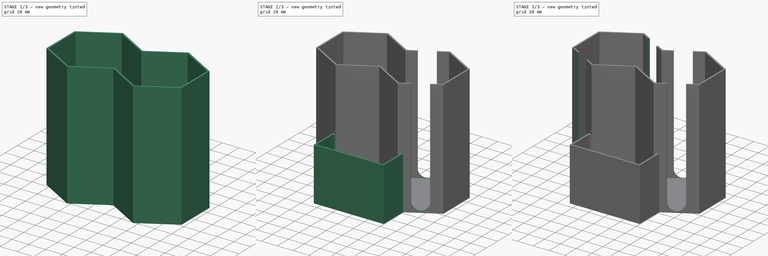
[diagram: build sequence overview — one tinted view per stage of 3, left to right]
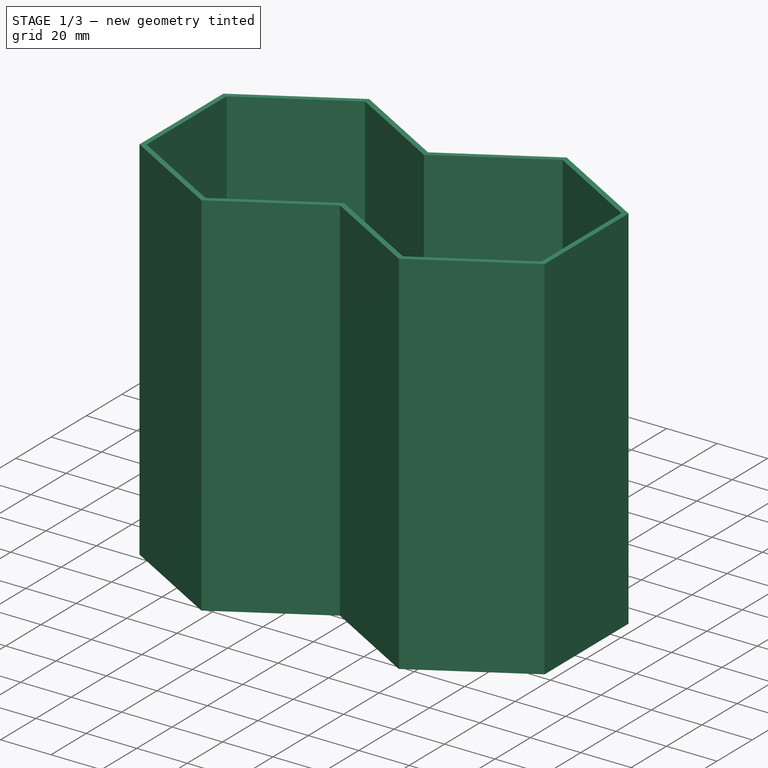
[diagram: stage 1 of 3 — iso view after this stage's code; geometry added in this stage tinted green]
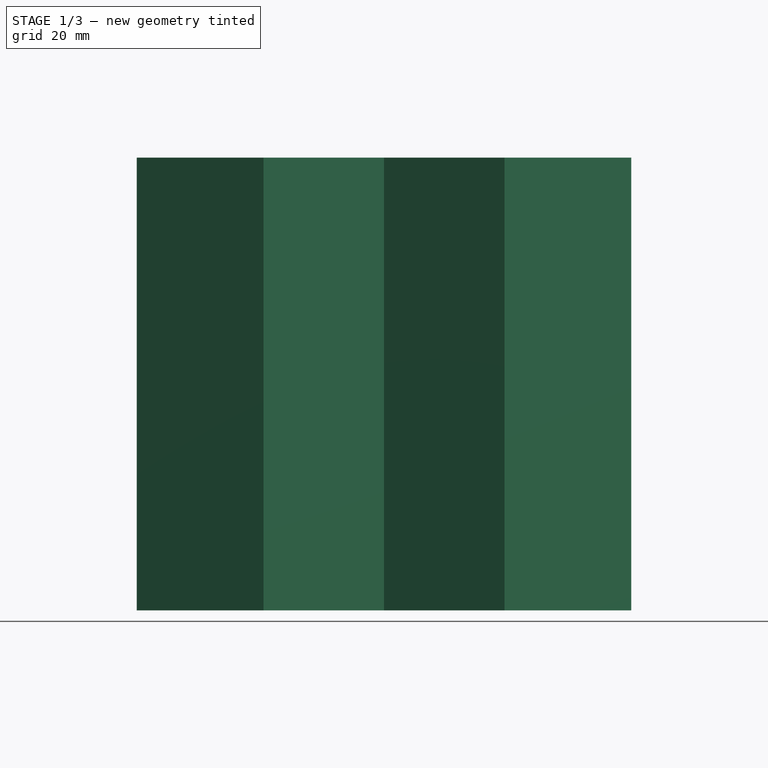
[diagram: stage 1 of 3 — front view after this stage's code; geometry added in this stage tinted green]
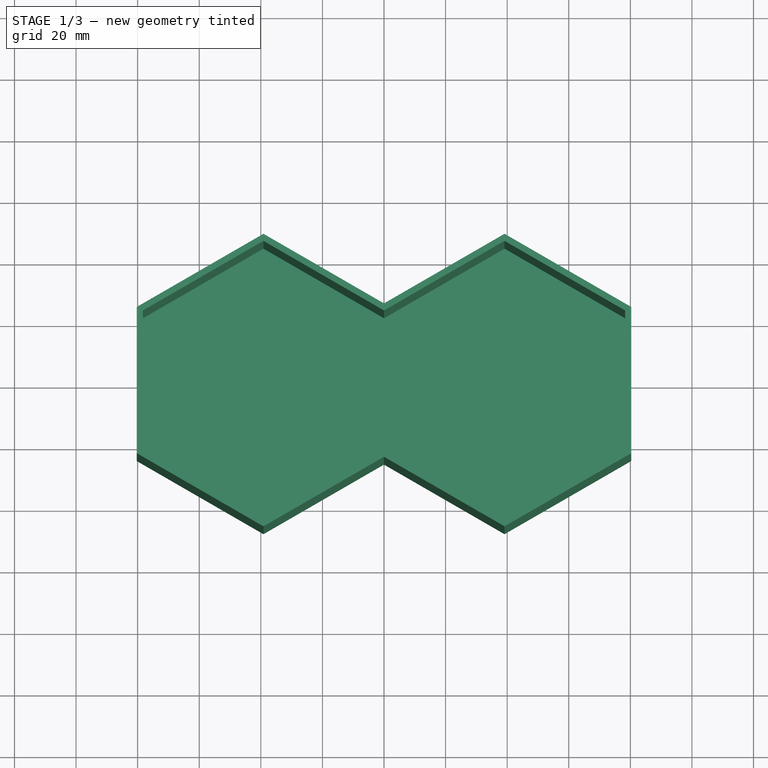
[diagram: stage 1 of 3 — top view after this stage's code; geometry added in this stage tinted green]
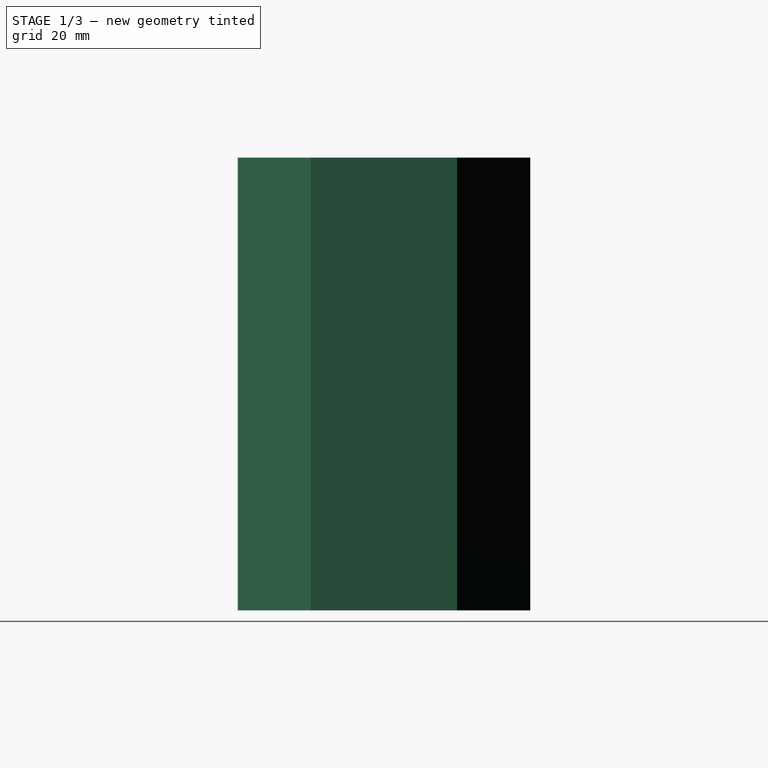
[diagram: stage 1 of 3 — right view after this stage's code; geometry added in this stage tinted green]
FCSTD DOCUMENT  (FreeCAD 1.0R39285 (Git))
Label: catan case 2
License: All rights reserved
objects: Sketcher::SketchObject×6, PartDesign::Pad×3, PartDesign::Pocket×3, PartDesign::Thickness×1, PartDesign::Body×1
note: 34 computed .brp shape members not serialized (recipe doc carries the construction recipe); baked Part::Feature solids carry a one-line shape summary decoded from their .brp

FEATURE [Sketcher::SketchObject] Sketch
  ArcFitTolerance = 1e-06
  AttachmentSupport = -> [XY_Plane]
  FullyConstrained = true
  MakeInternals = false
  MapMode = 5
  sketch-geometry (14):
    g0: LineSegment StartX=-1e-16 StartY=22.6 StartZ=0 EndX=-39.1443 EndY=45.2 EndZ=0
    g1: LineSegment StartX=-39.1443 StartY=45.2 StartZ=0 EndX=-78.2887 EndY=22.6 EndZ=0
    g2: LineSegment StartX=-78.2887 StartY=22.6 StartZ=0 EndX=-78.2887 EndY=-22.6 EndZ=0
    g3: LineSegment StartX=-78.2887 StartY=-22.6 StartZ=0 EndX=-39.1443 EndY=-45.2 EndZ=0
    g4: LineSegment StartX=-39.1443 StartY=-45.2 StartZ=0 EndX=-9e-16 EndY=-22.6 EndZ=0
    g5: LineSegment [constr] StartX=-1e-15 StartY=-22.6 StartZ=0 EndX=-1e-16 EndY=22.6 EndZ=0
    g6: Circle [constr] CenterX=-39.1443 CenterY=0 CenterZ=0 NormalX=0 NormalY=0 NormalZ=1 AngleXU=0 Radius=45.2
    g7: LineSegment StartX=78.2887 StartY=22.6 StartZ=0 EndX=39.1443 EndY=45.2 EndZ=0
    g8: LineSegment StartX=39.1443 StartY=45.2 StartZ=0 EndX=-1e-16 EndY=22.6 EndZ=0
    g9: LineSegment [constr] StartX=-1e-16 StartY=22.6 StartZ=0 EndX=-1e-15 EndY=-22.6 EndZ=0
    g10: LineSegment StartX=-1e-15 StartY=-22.6 StartZ=0 EndX=39.1443 EndY=-45.2 EndZ=0
    g11: LineSegment StartX=39.1443 StartY=-45.2 StartZ=0 EndX=78.2887 EndY=-22.6 EndZ=0
    g12: LineSegment StartX=78.2887 StartY=-22.6 StartZ=0 EndX=78.2887 EndY=22.6 EndZ=0
    g13: Circle [constr] CenterX=39.1443 CenterY=0 CenterZ=0 NormalX=0 NormalY=0 NormalZ=1 AngleXU=0 Radius=45.2
  constraints (31):
    c: Coincident(g0,g1)
    c: Coincident(g1,g2)
    c: Coincident(g2,g3)
    c: Coincident(g3,g4)
    c: Coincident(g4,g5)
    c: Coincident(g5,g0)
    c: Equal(g0, g1-g5) x5
    c: PointOnObject(g0,g6)
    c: PointOnObject(g1,g6)
    c: PointOnObject(g2,g6)
    c: PointOnObject(g3,g6)
    c: PointOnObject(g4,g6)
    c: PointOnObject(g5,g6)
    c: PointOnObject(g6,g-1)
    c: Coincident(g7,g8)
    c: Coincident(g8,g9)
    c: Coincident(g9,g10)
    c: Coincident(g10,g11)
    c: Coincident(g11,g12)
    c: Coincident(g12,g7)
    c: Equal(g7, g8-g12) x5
    c: PointOnObject(g7,g13)
    c: PointOnObject(g8,g13)
    c: PointOnObject(g9,g13)
    c: PointOnObject(g10,g13)
    c: PointOnObject(g11,g13)
    c: PointOnObject(g12,g13)
    c: Radius(g13) = 45.2
    c: Symmetric(g6,g13,g-2)
    c: Coincident(g0,g8)
    c: Coincident(g4,g9)
FEATURE [PartDesign::Pad] Pad
  Direction = (0,0,1)
  Length = 145
  Length2 = 10
  Profile = -> Sketch
  ReferenceAxis = -> Sketch [N_Axis]
  Refine = true
  Suppressed = false
  Type = 0
FEATURE [PartDesign::Thickness] Thickness
  Base = -> Pad [Face12]
  BaseFeature = -> Pad
  Intersection = false
  Join = 1
  Mode = 0
  Refine = true
  SupportTransform = false
  Suppressed = false
  Value = 2
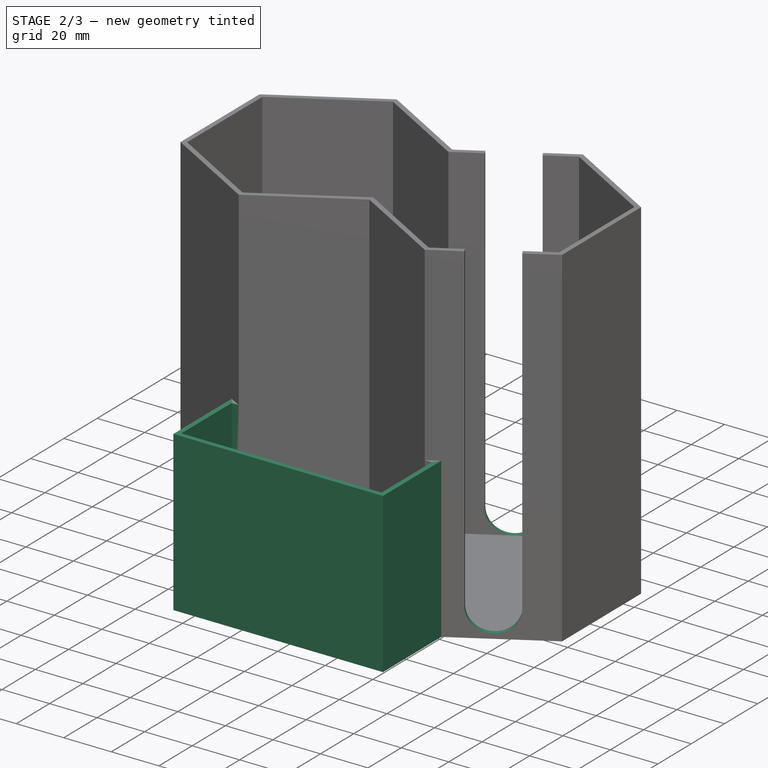
[diagram: stage 2 of 3 — iso view after this stage's code; geometry added in this stage tinted green]
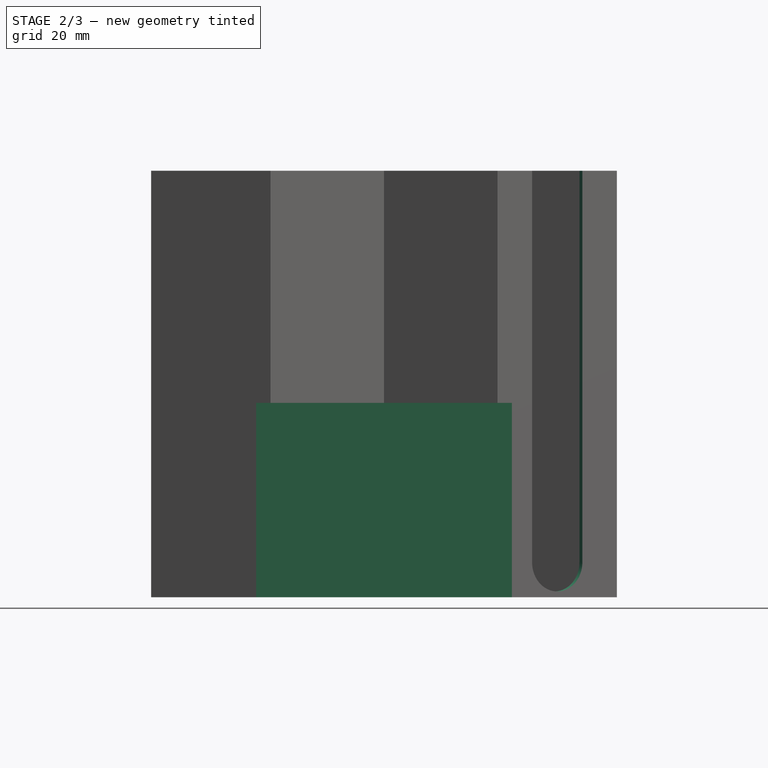
[diagram: stage 2 of 3 — front view after this stage's code; geometry added in this stage tinted green]
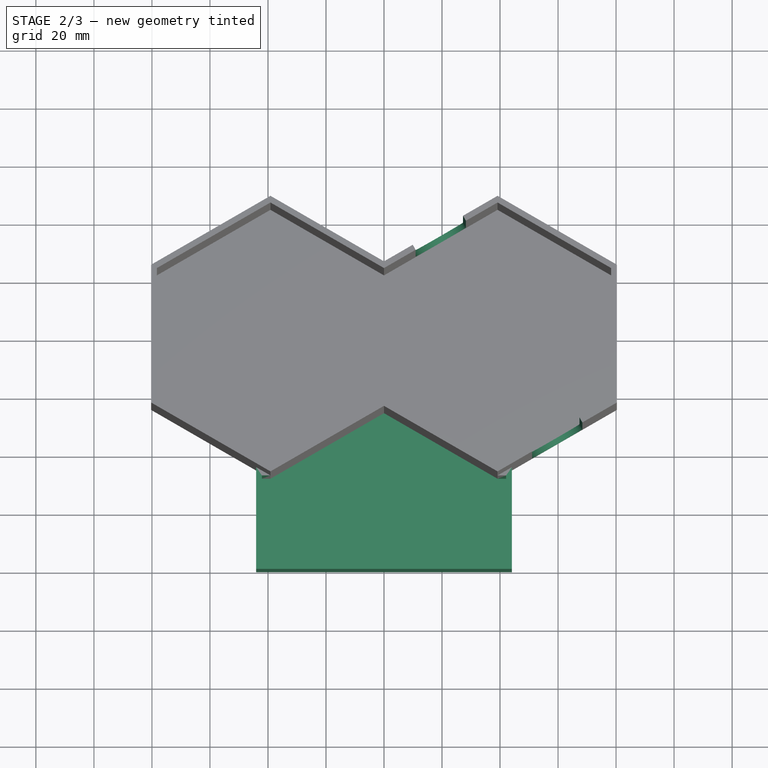
[diagram: stage 2 of 3 — top view after this stage's code; geometry added in this stage tinted green]
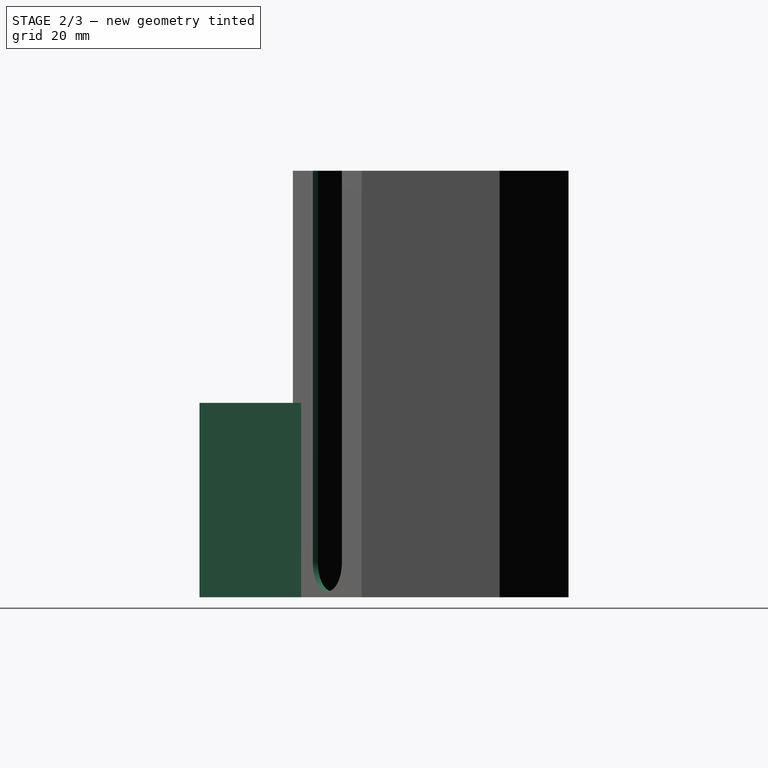
[diagram: stage 2 of 3 — right view after this stage's code; geometry added in this stage tinted green]
FEATURE [Sketcher::SketchObject] Sketch001
  ArcFitTolerance = 1e-06
  AttachmentSupport = -> [XY_Plane]
  ExternalGeometry = -> [Thickness]
  FullyConstrained = true
  MakeInternals = false
  MapMode = 5
  sketch-geometry (12):
    g0: LineSegment StartX=-44.1 StartY=-44.6483 StartZ=0 EndX=-39.1443 EndY=-47.5094 EndZ=0
    g1: LineSegment StartX=-39.1443 StartY=-47.5094 StartZ=0 EndX=-42.1 EndY=-47.5094 EndZ=0
    g2: LineSegment StartX=-42.1 StartY=-47.5094 StartZ=0 EndX=-42.1 EndY=-77.7094 EndZ=0
    g3: LineSegment StartX=-42.1 StartY=-77.7094 StartZ=0 EndX=42.1 EndY=-77.7094 EndZ=0
    g4: LineSegment StartX=42.1 StartY=-77.7094 StartZ=0 EndX=42.1 EndY=-47.5094 EndZ=0
    g5: LineSegment StartX=42.1 StartY=-47.5094 StartZ=0 EndX=39.1443 EndY=-47.5094 EndZ=0
    g6: LineSegment StartX=39.1443 StartY=-47.5094 StartZ=0 EndX=44.1 EndY=-44.6483 EndZ=0
    g7: LineSegment StartX=44.1 StartY=-44.6483 StartZ=0 EndX=44.1 EndY=-44.6483 EndZ=0
    g8: LineSegment StartX=44.1 StartY=-44.6483 StartZ=0 EndX=44.1 EndY=-79.7094 EndZ=0
    g9: LineSegment StartX=44.1 StartY=-79.7094 StartZ=0 EndX=-44.1 EndY=-79.7094 EndZ=0
    g10: LineSegment StartX=-44.1 StartY=-79.7094 StartZ=0 EndX=-44.1 EndY=-44.6483 EndZ=0
    g11: LineSegment StartX=-44.1 StartY=-44.6483 StartZ=0 EndX=-44.1 EndY=-44.6483 EndZ=0
  constraints (35):
    c: Coincident(g0,g1)
    c: Horizontal(g1)
    c: Coincident(g1,g2)
    c: Vertical(g2)
    c: Coincident(g2,g3)
    c: Coincident(g3,g4)
    c: Vertical(g4)
    c: Coincident(g4,g5)
    c: Horizontal(g5)
    c: Coincident(g5,g6)
    c: Coincident(g6,g7)
    c: Horizontal(g7)
    c: Coincident(g7,g8)
    c: Vertical(g8)
    c: Coincident(g8,g9)
    c: Horizontal(g9)
    c: Coincident(g9,g10)
    c: Vertical(g10)
    c: Coincident(g10,g11)
    c: Coincident(g11,g0)
    c: Horizontal(g11)
    c: Equal(g4,g2)
    c: Equal(g8,g10)
    c: Distance(g3,g8) = 2
    c: Distance(g2,g10) = 2
    c: Distance(g2,g9) = 2
    c: Symmetric(g2,g3,g-2)
    c: Distance(g3) = 84.2
    c: Distance(g4) = 30.2
    c: PointOnObject(g0,g-3)
    c: PointOnObject(g0,g-3)
    c: PointOnObject(g6,g-4)
    c: PointOnObject(g5,g-4)
    c: PointOnObject(g-4,g5)
    c: PointOnObject(g7,g-4)
FEATURE [PartDesign::Pad] Pad001
  BaseFeature = -> Thickness
  Direction = (0,0,1)
  Length = 65
  Length2 = 10
  Profile = -> Sketch001
  ReferenceAxis = -> Sketch001 [N_Axis]
  Refine = true
  Suppressed = false
  Type = 0
FEATURE [Sketcher::SketchObject] Sketch002
  ArcFitTolerance = 1e-06
  AttachmentSupport = -> [Pad001]
  ExternalGeometry = -> [Pad001]
  FullyConstrained = true
  MakeInternals = false
  MapMode = 5
  Placement = pos=(0,0,0) rot=(1,0,0;3.14159rad)
  sketch-geometry (7):
    g0: LineSegment StartX=-44.1 StartY=79.7094 StartZ=0 EndX=44.1 EndY=79.7094 EndZ=0
    g1: LineSegment StartX=44.1 StartY=79.7094 StartZ=0 EndX=44.1 EndY=44.6483 EndZ=0
    g2: LineSegment StartX=44.1 StartY=44.6483 StartZ=0 EndX=39.1443 EndY=47.5094 EndZ=0
    g3: LineSegment StartX=39.1443 StartY=47.5094 StartZ=0 EndX=-7.2e-15 EndY=24.9094 EndZ=0
    g4: LineSegment StartX=-7.2e-15 StartY=24.9094 StartZ=0 EndX=-39.1443 EndY=47.5094 EndZ=0
    g5: LineSegment StartX=-39.1443 StartY=47.5094 StartZ=0 EndX=-44.1 EndY=44.6483 EndZ=0
    g6: LineSegment StartX=-44.1 StartY=44.6483 StartZ=0 EndX=-44.1 EndY=79.7094 EndZ=0
  constraints (14):
    c: Coincident(g-6,g0)
    c: Coincident(g0,g-4)
    c: Coincident(g0,g1)
    c: Coincident(g1,g-3)
    c: Coincident(g1,g2)
    c: Coincident(g2,g-5)
    c: Coincident(g2,g3)
    c: Coincident(g3,g-7)
    c: Coincident(g3,g4)
    c: Coincident(g4,g-7)
    c: Coincident(g4,g5)
    c: Coincident(g5,g-6)
    c: Coincident(g5,g6)
    c: Coincident(g6,g0)
FEATURE [PartDesign::Pad] Pad002
  BaseFeature = -> Pad001
  Direction = (0,0,-1)
  Length = 2
  Length2 = 10
  Profile = -> Sketch002
  ReferenceAxis = -> Sketch002 [N_Axis]
  Refine = true
  Suppressed = false
  Type = 0
FEATURE [Sketcher::SketchObject] Sketch003
  ArcFitTolerance = 1e-06
  AttachmentSupport = -> [Pad002]
  ExternalGeometry = -> [Pad002]
  FullyConstrained = true
  MakeInternals = false
  MapMode = 5
  Placement = pos=(30.3583,-52.5821,0) rot=(0.935113,0.250563,0.250563;1.63783rad)
  sketch-geometry (6):
    g0: LineSegment StartX=23.9 StartY=145 StartZ=0 EndX=23.9 EndY=10 EndZ=0
    g1: ArcOfCircle CenterX=33.9 CenterY=10 CenterZ=0 NormalX=0 NormalY=0 NormalZ=1 AngleXU=0 Radius=10 StartAngle=3.14159 EndAngle=6.28319
    g2: LineSegment StartX=43.9 StartY=10 StartZ=0 EndX=43.9 EndY=145 EndZ=0
    g3: LineSegment StartX=43.9 StartY=145 StartZ=0 EndX=23.9 EndY=145 EndZ=0
    g4: LineSegment [constr] StartX=43.9 StartY=145 StartZ=0 EndX=57.6547 EndY=145 EndZ=0
    g5: LineSegment [constr] StartX=23.9 StartY=145 StartZ=0 EndX=10.1453 EndY=145 EndZ=0
  constraints (15):
    c: Vertical(g0)
    c: Tangent(g0,g1) = -1.5708
    c: Tangent(g1,g2) = -1.5708
    c: Coincident(g2,g3)
    c: Coincident(g3,g0)
    c: Horizontal(g3)
    c: Vertical(g2)
    c: Tangent(g1,g-1)
    c: PointOnObject(g2,g-3)
    c: Distance(g3) = 20
    c: Coincident(g4,g2)
    c: Coincident(g4,g-3)
    c: Coincident(g5,g0)
    c: Coincident(g5,g-3)
    c: Equal(g5,g4)
FEATURE [PartDesign::Pocket] Pocket
  BaseFeature = -> Pad002
  Direction = (-0.5,0.866025,-3e-16)
  Length = 0
  Length2 = 5
  Profile = -> Sketch003
  ReferenceAxis = -> Sketch003 [N_Axis]
  Refine = true
  Suppressed = false
  Type = 3
  UpToFace = -> Pad002 [Face14]
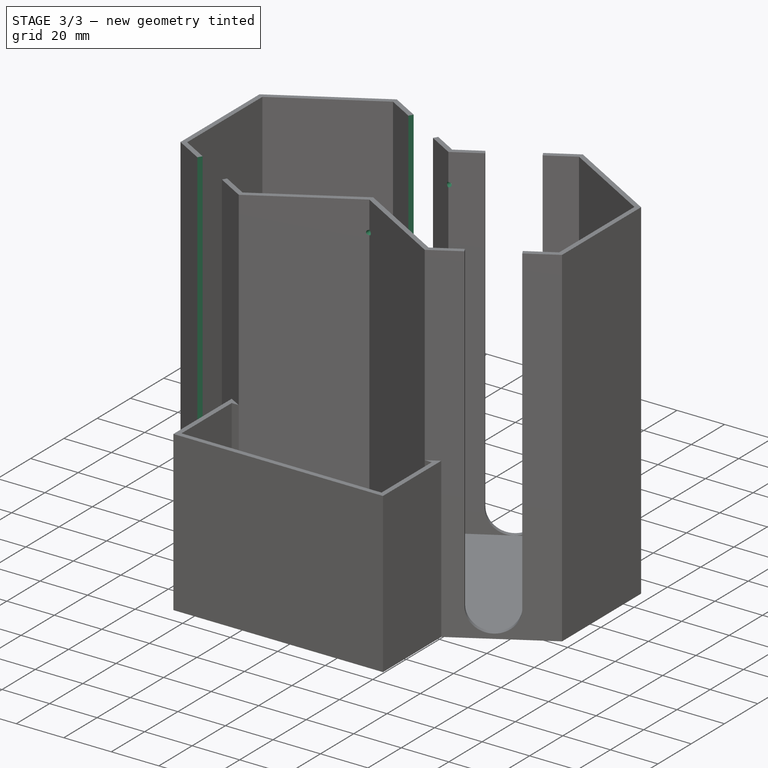
[diagram: stage 3 of 3 — iso view after this stage's code; geometry added in this stage tinted green]
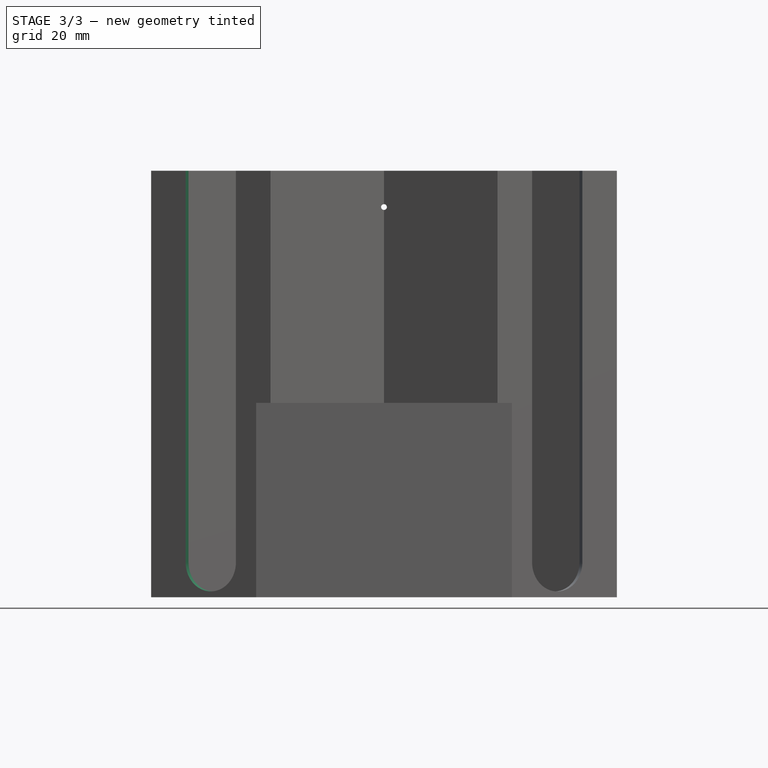
[diagram: stage 3 of 3 — front view after this stage's code; geometry added in this stage tinted green]
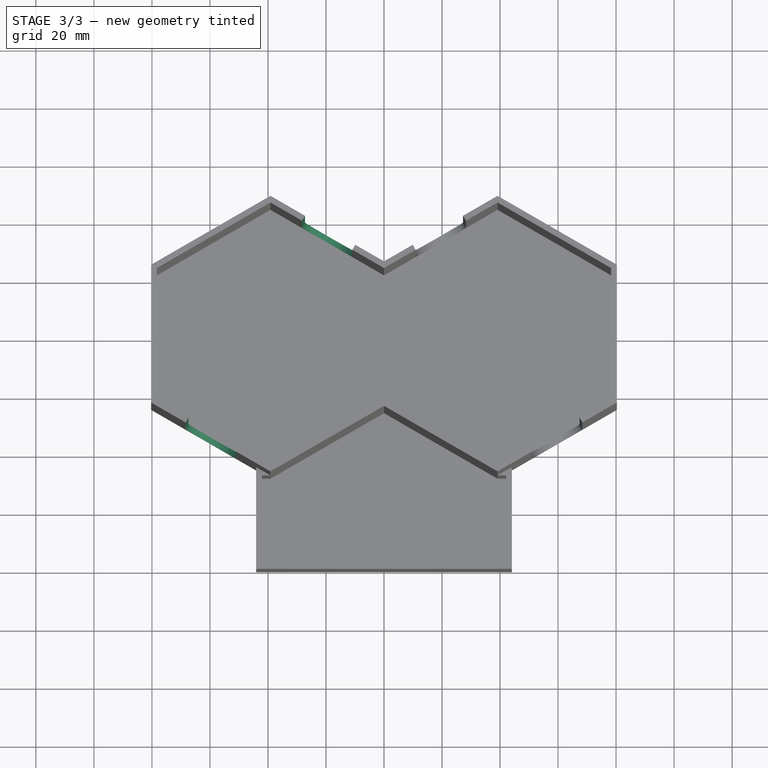
[diagram: stage 3 of 3 — top view after this stage's code; geometry added in this stage tinted green]
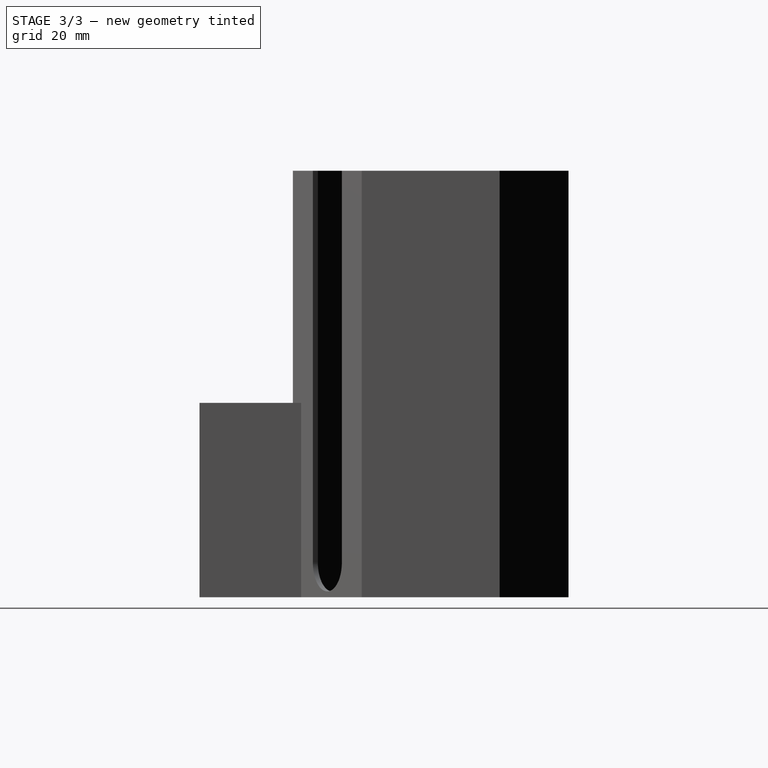
[diagram: stage 3 of 3 — right view after this stage's code; geometry added in this stage tinted green]
FEATURE [Sketcher::SketchObject] Sketch004
  ArcFitTolerance = 1e-06
  AttachmentSupport = -> [Pocket]
  ExternalGeometry = -> [Pocket]
  FullyConstrained = true
  MakeInternals = false
  MapMode = 5
  Placement = pos=(-30.3583,-52.5821,0) rot=(0.935113,-0.250563,-0.250563;1.63783rad)
  sketch-geometry (6):
    g0: LineSegment StartX=-43.9 StartY=145 StartZ=0 EndX=-43.9 EndY=10 EndZ=0
    g1: ArcOfCircle CenterX=-33.9 CenterY=10 CenterZ=0 NormalX=0 NormalY=0 NormalZ=1 AngleXU=0 Radius=10 StartAngle=3.14159 EndAngle=6.28319
    g2: LineSegment StartX=-23.9 StartY=10 StartZ=0 EndX=-23.9 EndY=145 EndZ=0
    g3: LineSegment StartX=-23.9 StartY=145 StartZ=0 EndX=-43.9 EndY=145 EndZ=0
    g4: LineSegment [constr] StartX=-43.9 StartY=145 StartZ=0 EndX=-57.6547 EndY=145 EndZ=0
    g5: LineSegment [constr] StartX=-23.9 StartY=145 StartZ=0 EndX=-10.1453 EndY=145 EndZ=0
  constraints (15):
    c: Vertical(g0)
    c: Tangent(g0,g1) = -1.5708
    c: Tangent(g1,g2) = -1.5708
    c: Coincident(g2,g3)
    c: Coincident(g3,g0)
    c: Horizontal(g3)
    c: Vertical(g2)
    c: Tangent(g1,g-1)
    c: PointOnObject(g2,g-3)
    c: Coincident(g4,g0)
    c: Coincident(g4,g-3)
    c: Coincident(g5,g2)
    c: Coincident(g5,g-3)
    c: Equal(g5,g4)
    c: Distance(g3) = 20
FEATURE [PartDesign::Pocket] Pocket001
  BaseFeature = -> Pocket
  Direction = (0.5,0.866025,-3e-16)
  Length = 0
  Length2 = 5
  Profile = -> Sketch004
  ReferenceAxis = -> Sketch004 [N_Axis]
  Refine = true
  Suppressed = false
  Type = 3
  UpToFace = -> Pocket [Face19]
FEATURE [Sketcher::SketchObject] Sketch005
  ArcFitTolerance = 1e-06
  AttachmentSupport = -> [XZ_Plane]
  ExternalGeometry = -> [Pocket001]
  FullyConstrained = true
  MakeInternals = false
  MapMode = 5
  Placement = pos=(0,0,0) rot=(1,0,0;1.5708rad)
  sketch-geometry (1):
    g0: Circle CenterX=0 CenterY=132.5 CenterZ=0 NormalX=0 NormalY=0 NormalZ=1 AngleXU=0 Radius=1
  constraints (3):
    c: Diameter(g0) = 2
    c: PointOnObject(g0,g-2)
    c: Distance(g0,g-3) = 12.5
FEATURE [PartDesign::Pocket] Pocket002
  BaseFeature = -> Pocket001
  Direction = (0,1,-2e-16)
  Length = 5
  Length2 = 5
  Midplane = true
  Profile = -> Sketch005
  ReferenceAxis = -> Sketch005 [N_Axis]
  Refine = true
  Suppressed = false
  Type = 1
FEATURE [PartDesign::Body] Body
  AllowCompound = false
  Group = -> [Sketch,Pad,Thickness,Sketch001,Pad001,Sketch002,Pad002,Sketch003,Pocket,Sketch004,Pocket001,Sketch005,Pocket002]
  Origin = -> Origin
  Tip = -> Pocket002
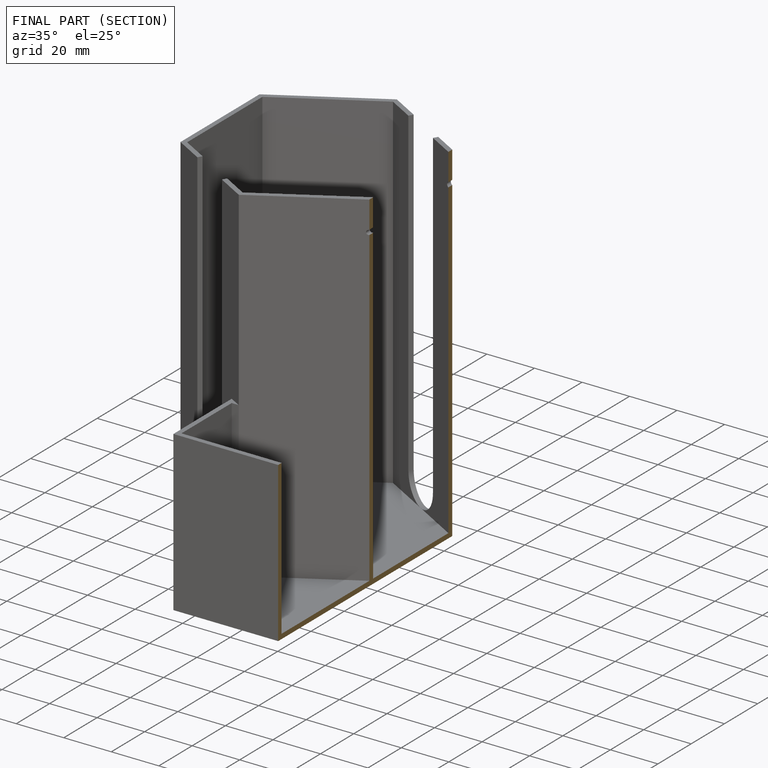
[diagram: finished part — half-section view (interior)]
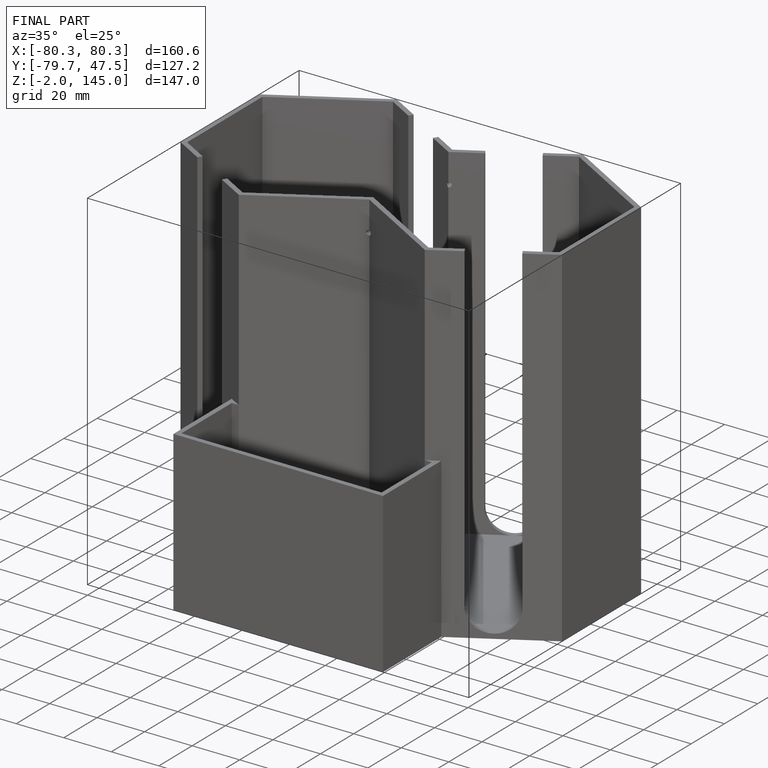
[diagram: finished part — iso view with bounding-box wireframe]
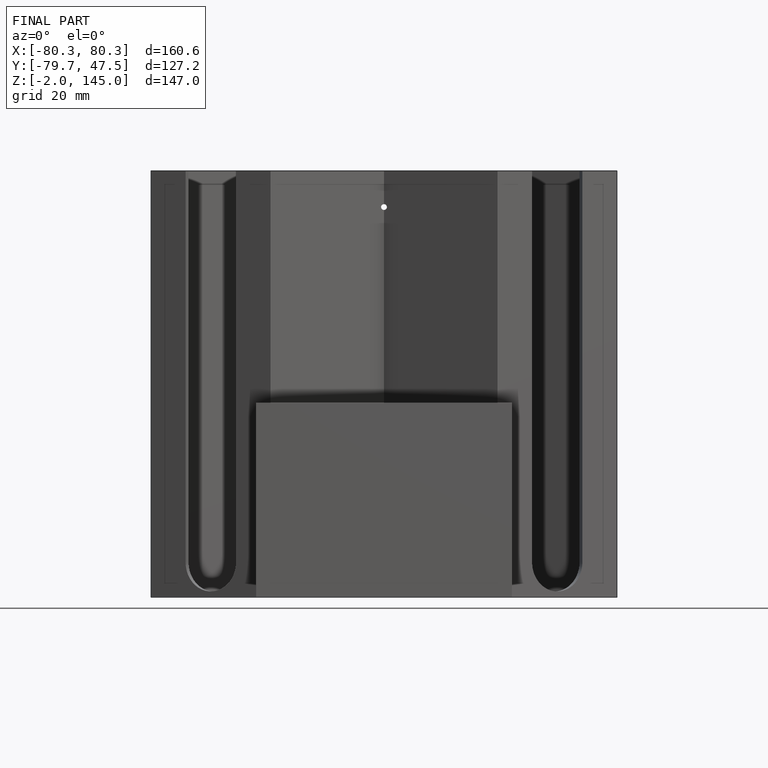
[diagram: finished part — front view with bounding-box wireframe]
